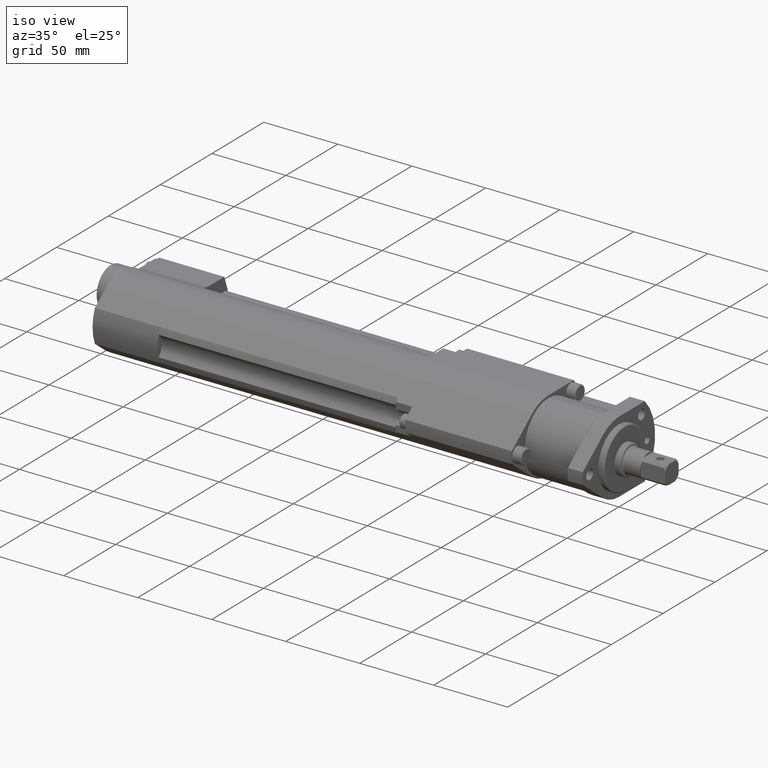
[diagram: clean part render]
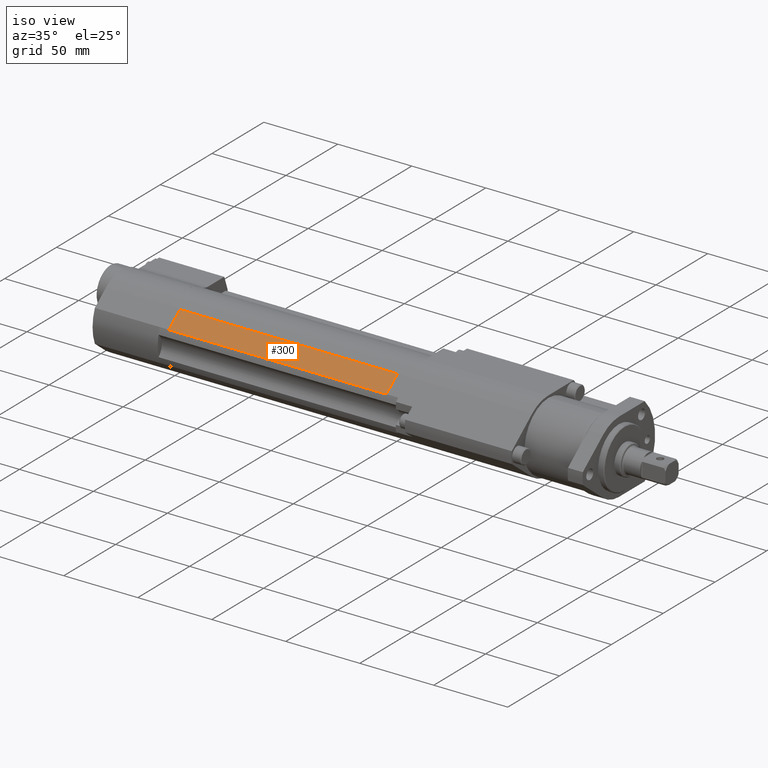
[diagram: same view with one face highlighted and labeled with its STEP entity id]
A machine part, iso view. The second image highlights one B-rep face of the part: STEP entity #300.
In plain terms, the highlighted planar face has unit normal (0, 0.6157, -0.788).
Its self-contained STEP definition (entity closure, byte-faithful):
#65 = ORIENTED_EDGE ( 'NONE', *, *, #3296, .F. ) ;
#246 = CARTESIAN_POINT ( 'NONE',  ( -286.0000000000000600, -15.08370614547866000, 19.30626346336466500 ) ) ;
#300 = ADVANCED_FACE ( 'NONE', ( #1398 ), #8284, .F. ) ;
#753 = CARTESIAN_POINT ( 'NONE',  ( -286.0000000000000600, -25.76553998420781300, 10.96070022043246600 ) ) ;
#1260 = CARTESIAN_POINT ( 'NONE',  ( -286.0000000000000600, -25.76553998420781300, 10.96070022043246600 ) ) ;
#1398 = FACE_OUTER_BOUND ( 'NONE', #7119, .T. ) ;
#1864 = AXIS2_PLACEMENT_3D ( 'NONE', #3201, #9002, #4676 ) ;
#2221 = CARTESIAN_POINT ( 'NONE',  ( -286.0000000000000600, -25.76553998420781300, 10.96070022043246600 ) ) ;
#2924 = EDGE_CURVE ( 'NONE', #3577, #3035, #5080, .T. ) ;
#3035 = VERTEX_POINT ( 'NONE', #6361 ) ;
#3127 = ORIENTED_EDGE ( 'NONE', *, *, #4603, .T. ) ;
#3178 = VECTOR ( 'NONE', #6995, 1000.000000000000000 ) ;
#3201 = CARTESIAN_POINT ( 'NONE',  ( -286.0000000000000600, -25.76553998420781300, 10.96070022043246600 ) ) ;
#3233 = CARTESIAN_POINT ( 'NONE',  ( -139.0000000000000000, -25.76553998420781300, 10.96070022043246600 ) ) ;
#3296 = EDGE_CURVE ( 'NONE', #3035, #6530, #5759, .T. ) ;
#3577 = VERTEX_POINT ( 'NONE', #2221 ) ;
#3734 = CARTESIAN_POINT ( 'NONE',  ( -139.0000000000000000, -25.76553998420781300, 10.96070022043246600 ) ) ;
#4248 = VECTOR ( 'NONE', #4478, 1000.000000000000000 ) ;
#4263 = DIRECTION ( 'NONE',  ( 1.000000000000000000, -0.0000000000000000000, -0.0000000000000000000 ) ) ;
#4478 = DIRECTION ( 'NONE',  ( 0.0000000000000000000, 0.7880107536067205700, 0.6156614753256600700 ) ) ;
#4603 = EDGE_CURVE ( 'NONE', #6568, #6530, #8091, .T. ) ;
#4676 = DIRECTION ( 'NONE',  ( 0.0000000000000000000, 0.7880107536067205700, 0.6156614753256600700 ) ) ;
#5080 = LINE ( 'NONE', #1260, #3178 ) ;
#5402 = ORIENTED_EDGE ( 'NONE', *, *, #8391, .T. ) ;
#5716 = LINE ( 'NONE', #753, #7617 ) ;
#5759 = LINE ( 'NONE', #246, #7437 ) ;
#5950 = ORIENTED_EDGE ( 'NONE', *, *, #2924, .F. ) ;
#6361 = CARTESIAN_POINT ( 'NONE',  ( -286.0000000000000600, -15.08370614547866000, 19.30626346336466500 ) ) ;
#6530 = VERTEX_POINT ( 'NONE', #8754 ) ;
#6568 = VERTEX_POINT ( 'NONE', #3233 ) ;
#6995 = DIRECTION ( 'NONE',  ( 0.0000000000000000000, 0.7880107536067205700, 0.6156614753256600700 ) ) ;
#7119 = EDGE_LOOP ( 'NONE', ( #3127, #65, #5950, #5402 ) ) ;
#7408 = DIRECTION ( 'NONE',  ( 1.000000000000000000, -0.0000000000000000000, -0.0000000000000000000 ) ) ;
#7437 = VECTOR ( 'NONE', #7408, 1000.000000000000000 ) ;
#7617 = VECTOR ( 'NONE', #4263, 1000.000000000000000 ) ;
#8091 = LINE ( 'NONE', #3734, #4248 ) ;
#8284 = PLANE ( 'NONE',  #1864 ) ;
#8391 = EDGE_CURVE ( 'NONE', #3577, #6568, #5716, .T. ) ;
#8754 = CARTESIAN_POINT ( 'NONE',  ( -139.0000000000000000, -15.08370614547866000, 19.30626346336466500 ) ) ;
#9002 = DIRECTION ( 'NONE',  ( 0.0000000000000000000, 0.6156614753256600700, -0.7880107536067205700 ) ) ;